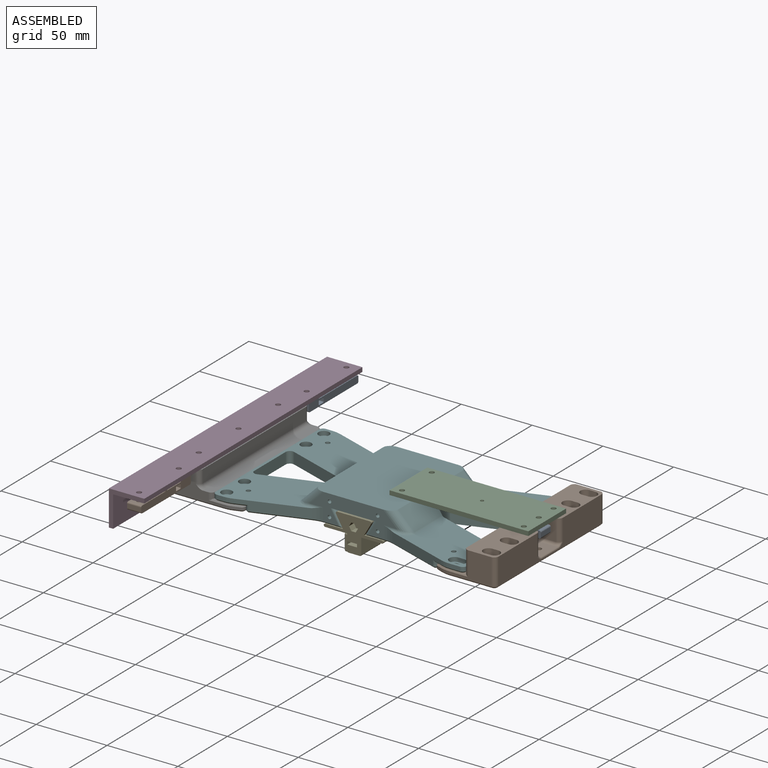
[diagram: assembled view]
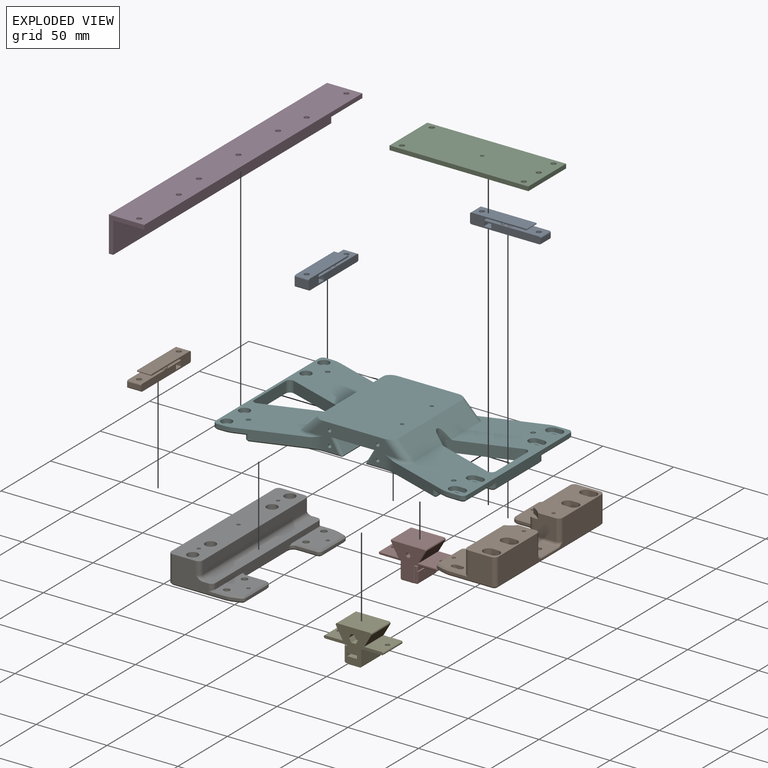
[diagram: exploded view]
GUIDED TOUR — MATED ASSEMBLY WITH SUBASSEMBLIES (Onshape document 8269ac0047d7daedeea948b6, AutoMate assembly 8269ac0047d7daedeea948b6_6d0890d1c90b11d7896fee83_16372f622378d9fdaa689036_default)

This assembly has 12 component occurrences arranged in 10 top-level units: 8 individual components plus 2 subassemblies (S0, S1). The tour has two levels: first the top level, where each subassembly is treated as one rigid unit; then each subassembly is toured internally in its own section (nesting deeper than one subassembly level is flattened into its subassembly's section).

Components are labeled P0..P11 across the whole record; subassembly units are labeled S0..S1. A mate is a constraint between two units; its type names the relative motion it leaves free:
  FASTENED — locks the two components together rigidly (no relative motion),
  PLANAR — leaves sliding in the plane through the listed point (normal = the listed direction) and rotation about that normal free.
Axis/direction vectors are unit vectors and 'through' points are millimeter coordinates, both in the assembly's world frame.

TOP-LEVEL MATES (between units; each subassembly's internal mates are listed in its own section)
  1. FASTENED "Fastened 6": P5 <-> P2, direction (0.000, 0.000, 1.000) through (-21.30, 15.14, 10.47) mm
  2. PLANAR "Planar 2": P5 <-> S0, direction (0.866, 0.000, 0.500) through (-50.83, 0.14, -3.60) mm
  3. FASTENED "Fastened 7": P1 <-> P5, direction (0.000, 0.000, 1.000) through (32.70, 40.14, -5.53) mm
  4. FASTENED "Fastened 1": P7 <-> P3, direction (0.000, 0.000, 1.000) through (-147.30, 40.14, 10.47) mm
  5. FASTENED "Fastened 3": P11 <-> P3, direction (0.000, 0.000, 1.000) through (-144.30, -64.36, 10.47) mm
  6. PLANAR "Planar 3": S1 <-> P5, direction (0.866, 0.000, -0.500) through (-29.86, 27.90, -5.28) mm
  7. PLANAR "Planar 1": S0 <-> P5, direction (0.000, 0.000, 1.000) through (-53.42, -27.68, -9.53) mm
  8. FASTENED "Fastened 4": P7 <-> P5, direction (0.000, 0.000, 1.000) through (-121.30, -48.86, -5.53) mm
  9. PLANAR "Planar 4": S1 <-> P5, direction (0.000, 0.000, 1.000) through (-26.18, 27.91, -9.53) mm
  10. FASTENED "Fastened 5": P2 <-> P10, direction (0.000, 0.000, -1.000) through (24.70, 0.14, 10.47) mm
  11. FASTENED "Fastened 2": P0 <-> P3, direction (0.000, 0.000, 1.000) through (-144.30, 64.64, 10.47) mm

TOP-LEVEL ASSEMBLY ORDER
  1. P1 — the base component [order verified]
  2. P5 [order verified]
  3. P7 [order verified]
  4. S1 [order verified]
  5. S0 [order verified]
  6. P11 [order verified]
  7. P0 [order verified]
  8. P3 [order verified]
  9. P10 [order verified]
  10. P2 [order verified]
(P5, P7 verified with a relaxed clearance tolerance: the source model stores slight part interference there.)
Order-tag legend:
  [order verified] — this step's position reverses a verified removal order: the component was checked to insert without passing through the ones already placed.

Of the 12 component occurrences, 3 carry the full construction recipe — the FeatureScript program that regenerates the part's solid from scratch; the rest are supplied as boundary geometry only. Each toured unit is shown spotlighted twice — assembled, then exploded with a leader line back to its socket (green = recipe-attached component, orange = geometry-only, blue = subassembly unit; the rest desaturated gray).
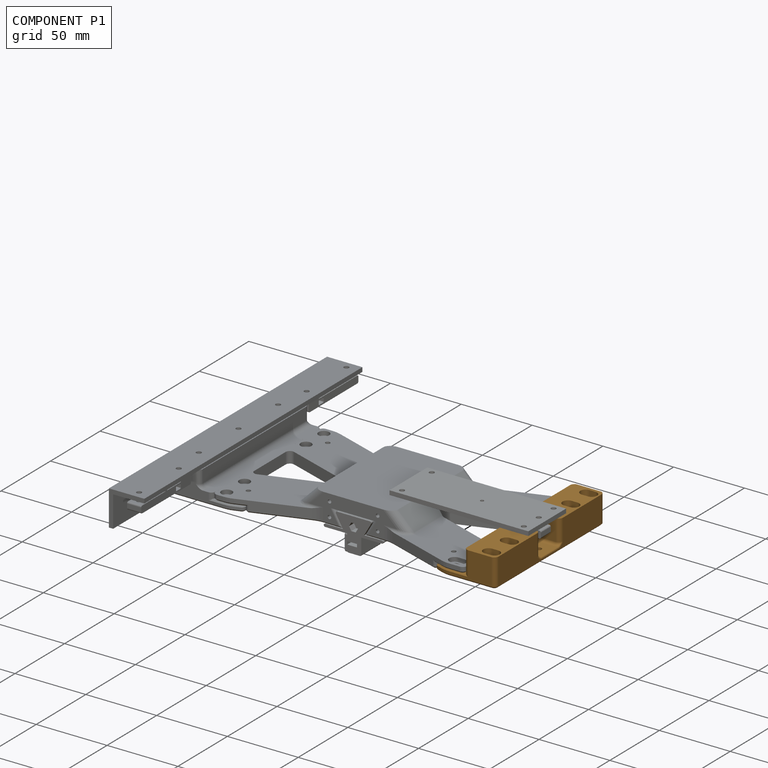
[diagram: component P1 — assembled]
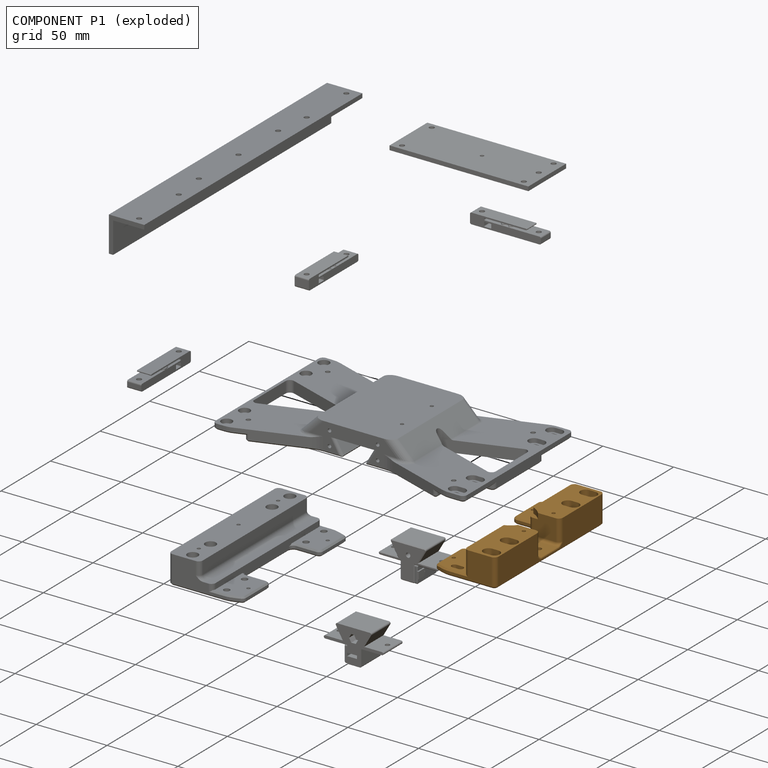
[diagram: component P1 — exploded]
COMPONENT P1 — geometry summary (no construction recipe available for this part):
  bounding box: 110.0 x 48.2 x 20.0 mm
  B-rep topology: 1 solid, 142 faces, 738 edges
  volume: 39856 mm^3 (38% of its bounding box)
  symmetry: mirror-symmetric across its y mid-plane
Held by: FASTENED mate "Fastened 7" to P5.
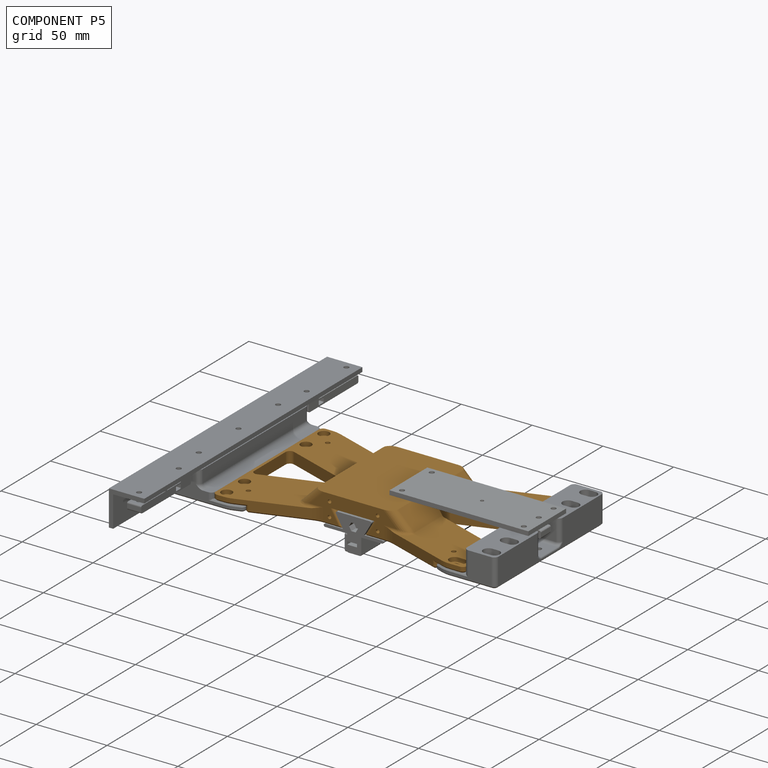
[diagram: component P5 — assembled]
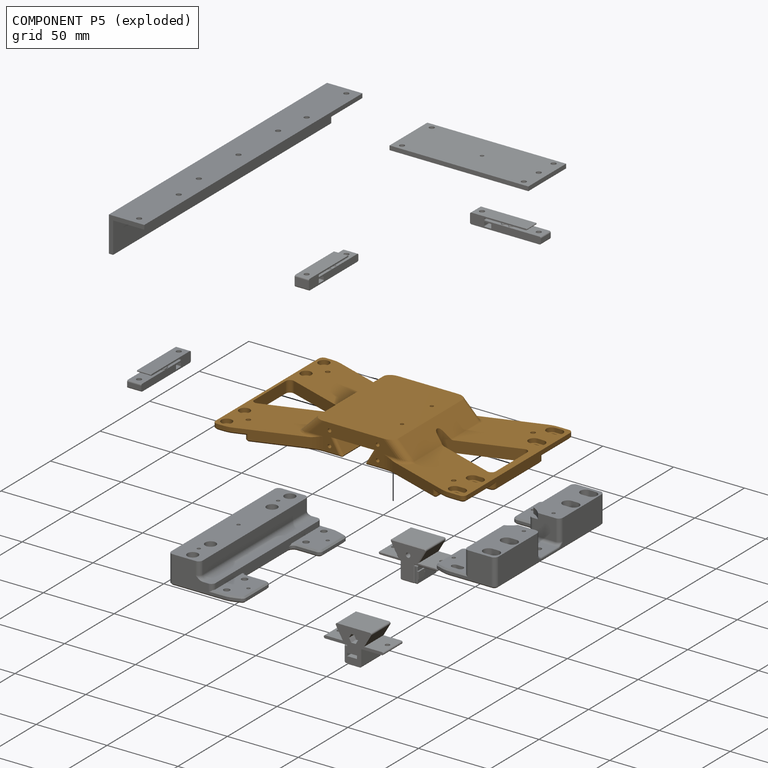
[diagram: component P5 — exploded]
COMPONENT P5 — geometry summary (no construction recipe available for this part):
  bounding box: 177.6 x 110.0 x 24.0 mm
  B-rep topology: 1 solid, 232 faces, 1196 edges
  volume: 138860 mm^3 (30% of its bounding box)
  symmetry: mirror-symmetric across its y mid-plane
Held by: FASTENED mate "Fastened 6" to P2; PLANAR mate "Planar 2" to P4; FASTENED mate "Fastened 7" to P1; PLANAR mate "Planar 3" to P8; PLANAR mate "Planar 1" to P4; FASTENED mate "Fastened 4" to P7; PLANAR mate "Planar 4" to P8.
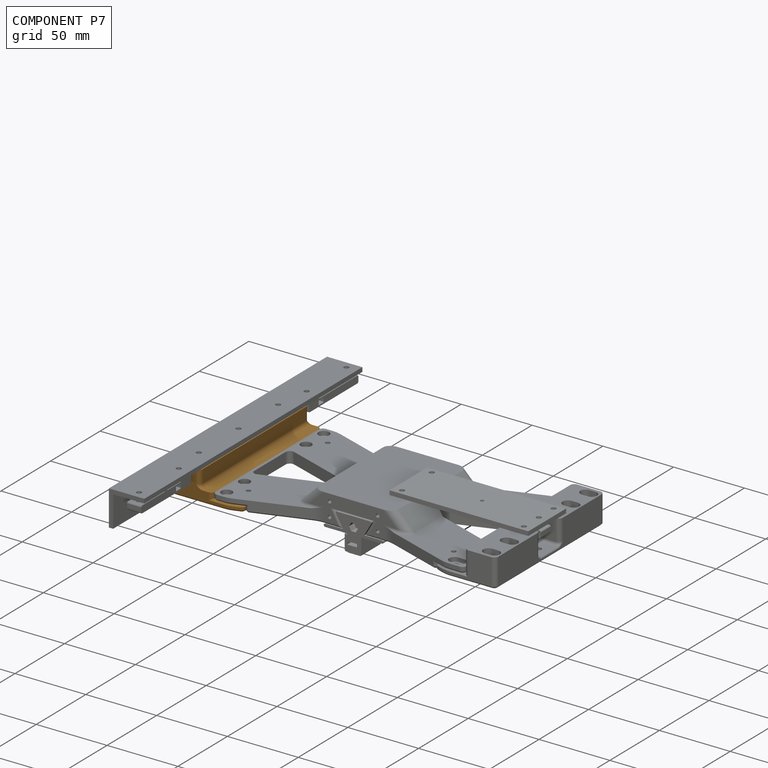
[diagram: component P7 — assembled]
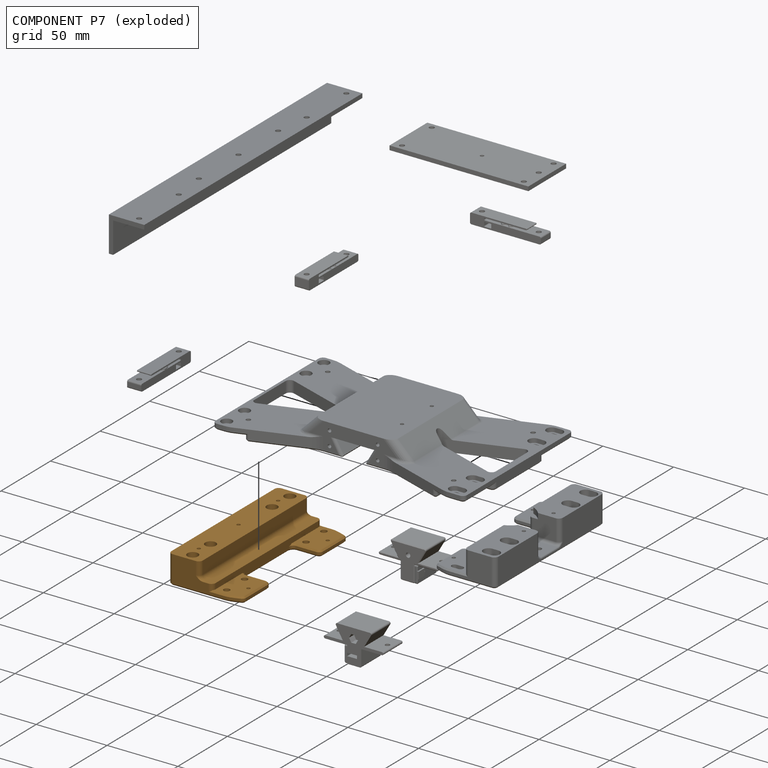
[diagram: component P7 — exploded]
COMPONENT P7 — geometry summary (no construction recipe available for this part):
  bounding box: 121.6 x 51.2 x 20.0 mm
  B-rep topology: 1 solid, 90 faces, 432 edges
  volume: 57745 mm^3 (46% of its bounding box)
  symmetry: mirror-symmetric across its y mid-plane
Held by: FASTENED mate "Fastened 1" to P3; FASTENED mate "Fastened 4" to P5.
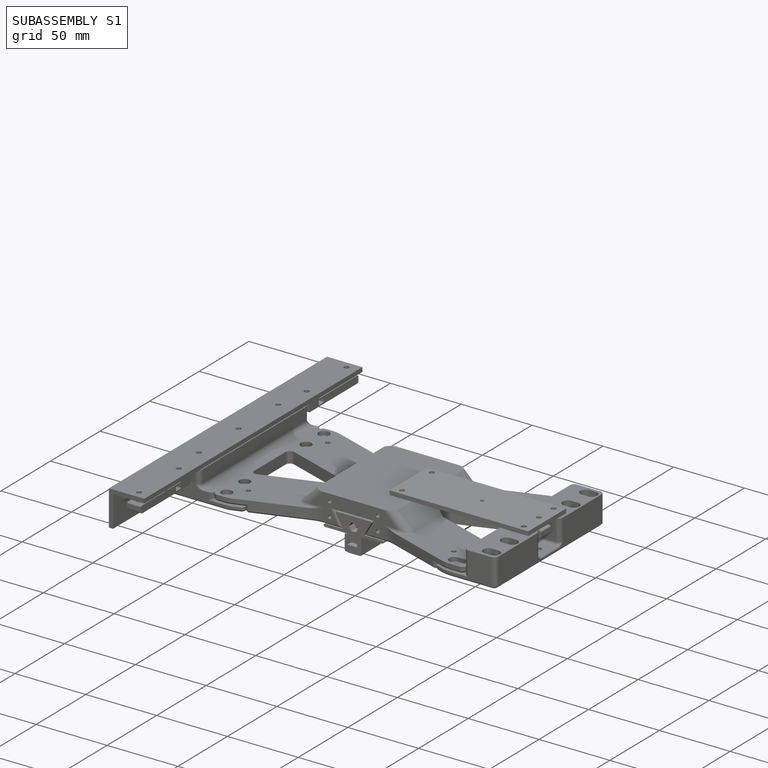
[diagram: subassembly S1 — assembled]
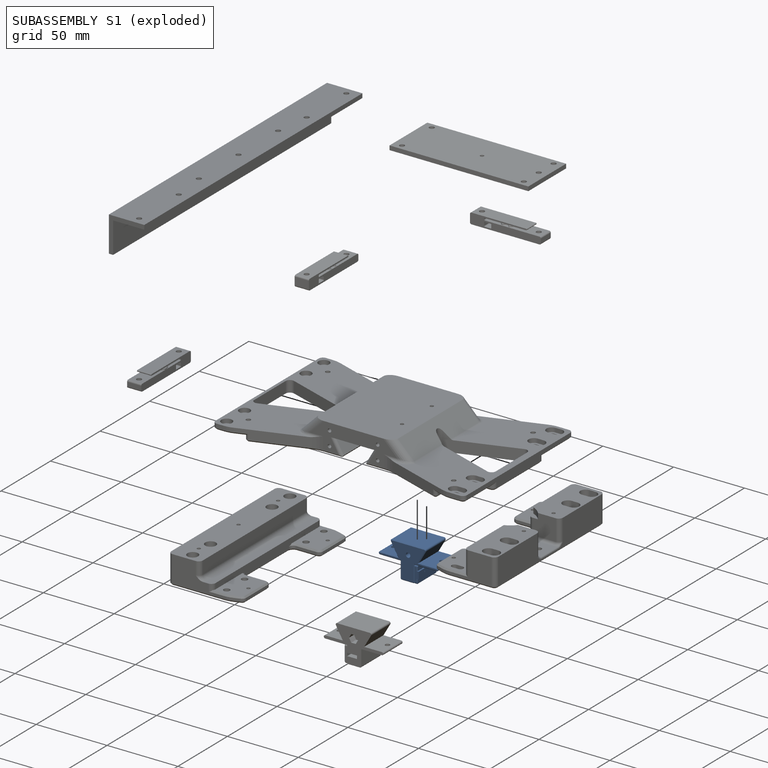
[diagram: subassembly S1 — exploded]
SUBASSEMBLY S1 — 2 components (P8, P9), of which 0 recipe-attached; toured below.
Held by: PLANAR mate "Planar 3" to P5; PLANAR mate "Planar 4" to P5.
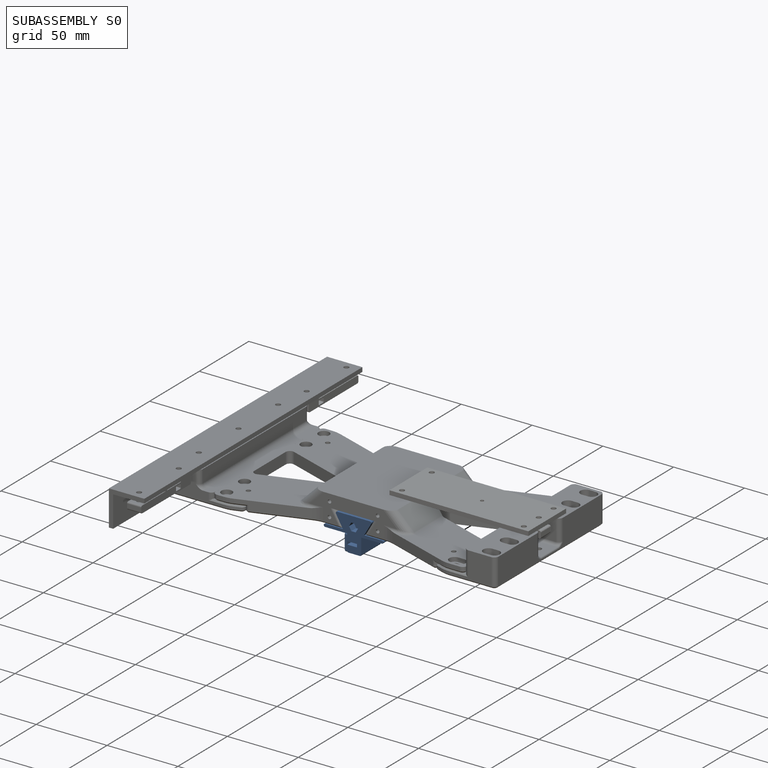
[diagram: subassembly S0 — assembled]
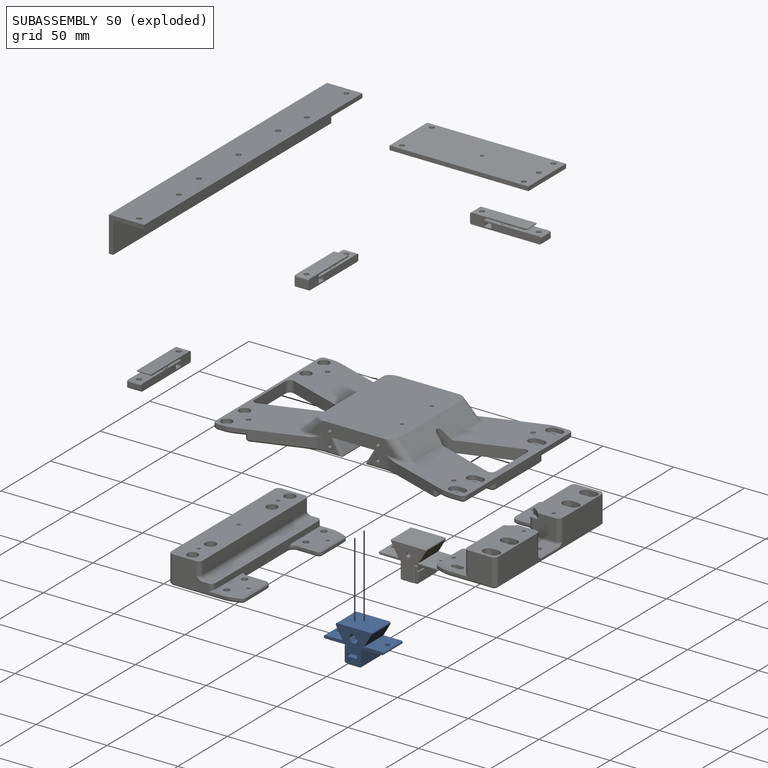
[diagram: subassembly S0 — exploded]
SUBASSEMBLY S0 — 2 components (P4, P6), of which 0 recipe-attached; toured below.
Held by: PLANAR mate "Planar 2" to P5; PLANAR mate "Planar 1" to P5.
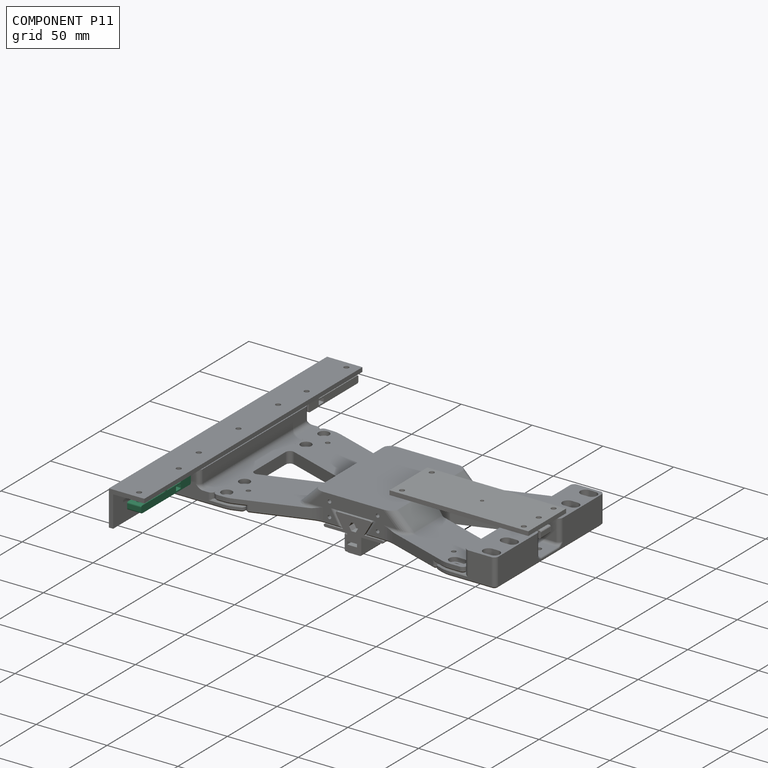
[diagram: component P11 — assembled]
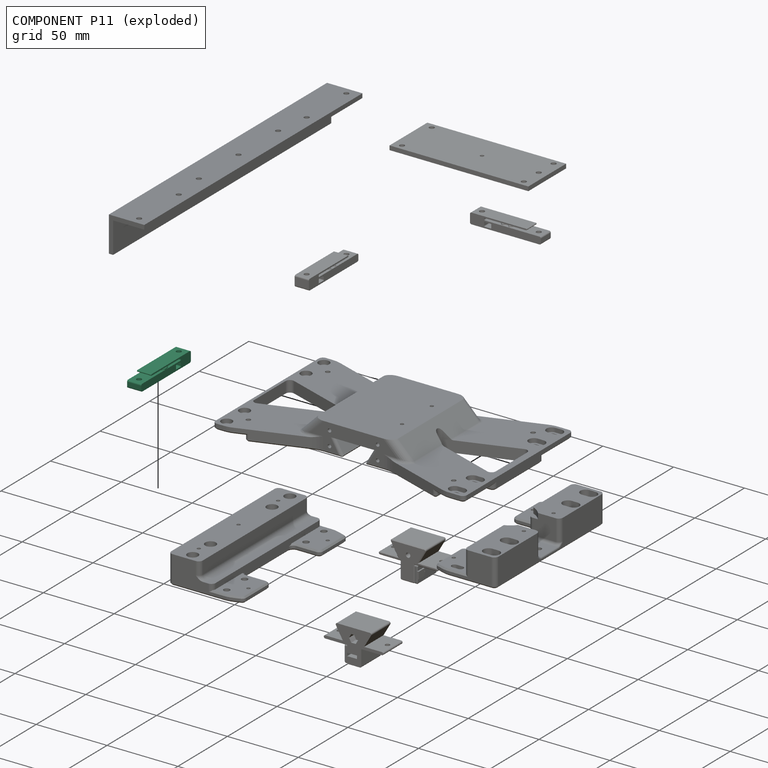
[diagram: component P11 — exploded]
COMPONENT P11 — same part as P0 (CADFS 00146708); its construction recipe is shown at P0.
Held by: FASTENED mate "Fastened 3" to P3.
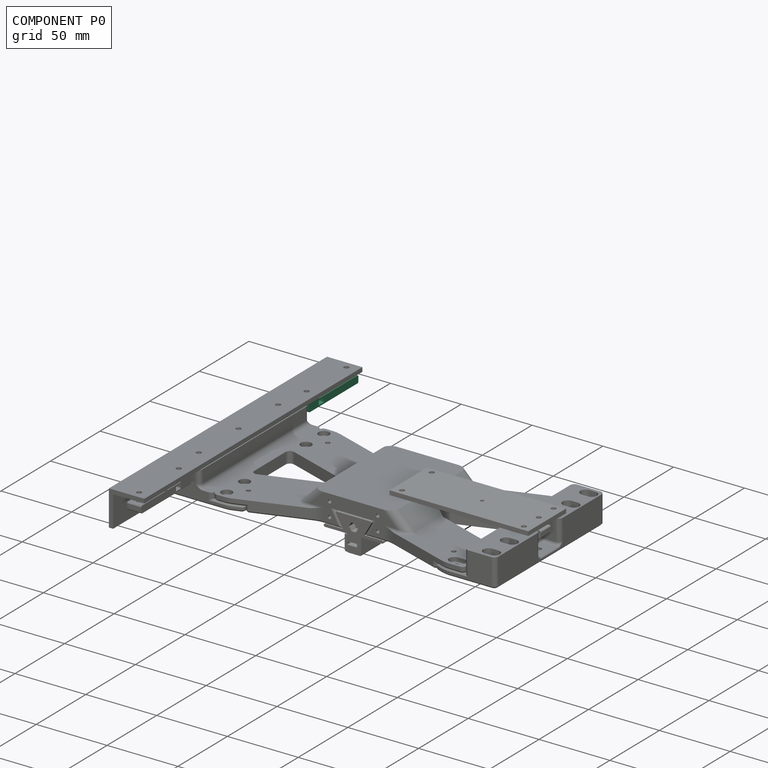
[diagram: component P0 — assembled]
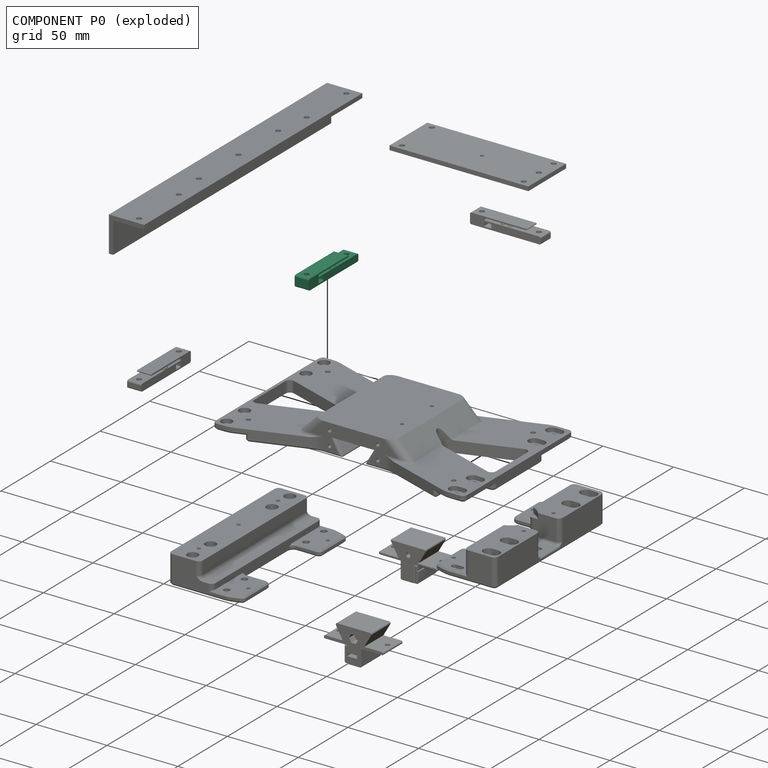
[diagram: component P0 — exploded]
COMPONENT P0 — recipe-attached (CADFS 00146708, mesh-verified: the recipe's output STEP matches this component's geometry to below the mesh-comparison resolution (tessellation chordal tolerance ~0.0773 mm)).
Held by: FASTENED mate "Fastened 2" to P3.
Construction recipe (FeatureScript — the CAD program that rebuilds this solid; sketch coordinates are in the units given by the * unit suffixes, e.g. mm):

FeatureScript 1511;
import(path : "onshape/std/geometry.fs", version : "1511.0");
import(path : "onshape/std/common.fs", version : "1511.0");
const mm = millimeter;
const VERTEX = EntityType.VERTEX;
const EDGE = EntityType.EDGE;
const FACE = EntityType.FACE;
const BODY = EntityType.BODY;
function v(x, y){return vector(x, y);}
function OD(order){return orderDisambiguation(order);}
function OSD(set){return originalSetDisambiguation(set);}
function TD(topology){return topologyDisambiguation(topology);}
function TDD(query){return trueDependencyDisambiguation(query);}
function sQuery(a, b, c) {return sketchEntityQuery(a, b, c);}

annotation { "Feature Type Name" : "Feature", "Feature Type Description" : "" }
export const myFeature = defineFeature(function(context is Context, id is Id, definition is map)
    precondition{}
    {
        {
            var Q0;
            Q0=qCreatedBy(makeId("Right.planeOp"),FACE);
            var sketch = newSketch(context, id + "F0", { "sketchPlane" : qUnion([Q0])});
            skLineSegment(sketch, "E0", {"start": v(0, 0) * mm, "end": v(40, 0) * mm});
            skLineSegment(sketch, "E1", {"start": v(40, 0) * mm, "end": v(40, -7.5) * mm});
            skLineSegment(sketch, "E2", {"start": v(40, -7.5) * mm, "end": v(-10, -7.5) * mm});
            skLineSegment(sketch, "E3", {"start": v(-10, -7.5) * mm, "end": v(-10, -2.5) * mm});
            skLineSegment(sketch, "E4", {"start": v(-10, -2.5) * mm, "end": v(30, -2.5) * mm});
            skLineSegment(sketch, "E5", {"start": v(30, -2.5) * mm, "end": v(30, -1) * mm});
            skLineSegment(sketch, "E6", {"start": v(30, -1) * mm, "end": v(0, -1) * mm});
            skLineSegment(sketch, "E7", {"start": v(0, -1) * mm, "end": v(0, 0) * mm});
            skLineSegment(sketch, "E8.bottom", {"start": v(25, -3.5) * mm, "end": v(30, -3.5) * mm});
            skLineSegment(sketch, "E8.top", {"start": v(25, -6.5) * mm, "end": v(30, -6.5) * mm});
            skLineSegment(sketch, "E8.left", {"start": v(25, -3.5) * mm, "end": v(25, -6.5) * mm});
            skLineSegment(sketch, "E8.right", {"start": v(30, -3.5) * mm, "end": v(30, -6.5) * mm});
            skSolve(sketch);
        }
        {
            var Q0;
            Q0=makeQuery(id+"F0.imprint","IMPRINT",FACE,{"disambiguationData":[TD([[makeQuery(id+"F0.imprint","IMPRINT",EDGE,{"derivedFrom":sQuery(id+"F0.wireOp",EDGE,"E0")}),-1.0]])]});
            extrude(context, id + "F1", {"entities" : qUnion([Q0]), "depth" : 10 * mm});
        }
        {
            var Q0;
            Q0=makeQuery(id+"F1.opExtrude","SWEPT_FACE",FACE,{"disambiguationData":[OSD([sQuery(id+"F0.wireOp",EDGE,"E2")])]});
            var sketch = newSketch(context, id + "F2", { "sketchPlane" : qUnion([Q0])});
            skCircle(sketch, "E9", {"center": v(5, -35) * mm, "radius": 1.75 * mm});
            skCircle(sketch, "E10", {"center": v(5, 5) * mm, "radius": 1.75 * mm});
            skLineSegment(sketch, "E11", {"start": v(5, 10) * mm, "end": v(5, -40) * mm, "construction": true});
            skSolve(sketch);
        }
        {
            var Q0;
            Q0 = qSketchRegion(id + "F2", true);
            extrude(context, id + "F3", {"entities" : qUnion([Q0]), "operationType" : NewBodyOperationType.REMOVE, "endBound" : BoundingType.THROUGH_ALL, "oppositeDirection" : true, "depth" : 25 * mm});
        }
        {
            var Q0;
            Q0=makeQuery(id+"F1.opExtrude","SWEPT_FACE",FACE,{"disambiguationData":[OSD([sQuery(id+"F0.wireOp",EDGE,"E4")])]});
            var sketch = newSketch(context, id + "F4", { "sketchPlane" : qUnion([Q0])});
            skArc(sketch, "E12", {"start": v(0, 13) * mm, "mid": v(10, 15) * mm, "end": v(0, 17) * mm});
            skArc(sketch, "E13", {"start": v(0, 13) * mm, "mid": v(2, 15) * mm, "end": v(0, 17) * mm});
            skSolve(sketch);
        }
        {
            var Q0;
            Q0 = qSketchRegion(id + "F4", true);
            extrude(context, id + "F5", {"entities" : qUnion([Q0]), "operationType" : NewBodyOperationType.ADD, "depth" : 1 * mm});
        }
        {
            var Q0;
            Q0=makeQuery(id+"F1.opExtrude","SWEPT_EDGE",EDGE,{"disambiguationData":[OSD([sQuery(id+"F0.wireOp",EDGE,"E5"),sQuery(id+"F0.wireOp",EDGE,"E6")])]});
            var Q1;
            Q1=makeQuery(id+"F1.opExtrude","SWEPT_EDGE",EDGE,{"disambiguationData":[OSD([sQuery(id+"F0.wireOp",EDGE,"E8.bottom"),sQuery(id+"F0.wireOp",EDGE,"E8.right")])]});
            var Q2;
            Q2=makeQuery(id+"F1.opExtrude","SWEPT_EDGE",EDGE,{"disambiguationData":[OSD([sQuery(id+"F0.wireOp",EDGE,"E4"),sQuery(id+"F0.wireOp",EDGE,"E5")])]});
            var Q3;
            Q3=makeQuery(id+"F1.opExtrude","SWEPT_EDGE",EDGE,{"disambiguationData":[OSD([sQuery(id+"F0.wireOp",EDGE,"E8.top"),sQuery(id+"F0.wireOp",EDGE,"E8.right")])]});
            var Q4;
            Q4=makeQuery(id+"F1.opExtrude","SWEPT_EDGE",EDGE,{"disambiguationData":[OSD([sQuery(id+"F0.wireOp",EDGE,"E8.bottom"),sQuery(id+"F0.wireOp",EDGE,"E8.left")])]});
            var Q5;
            Q5=makeQuery(id+"F1.opExtrude","SWEPT_EDGE",EDGE,{"disambiguationData":[OSD([sQuery(id+"F0.wireOp",EDGE,"E8.top"),sQuery(id+"F0.wireOp",EDGE,"E8.left")])]});
            var Q6;
            Q6=makeQuery(id+"F1.opExtrude","SWEPT_EDGE",EDGE,{"disambiguationData":[OSD([sQuery(id+"F0.wireOp",EDGE,"E0"),sQuery(id+"F0.wireOp",EDGE,"E7")])]});
            var Q7;
            Q7=makeQuery(id+"F1.opExtrude","SWEPT_EDGE",EDGE,{"disambiguationData":[OSD([sQuery(id+"F0.wireOp",EDGE,"E6"),sQuery(id+"F0.wireOp",EDGE,"E7")])]});
            fillet(context, id + "F6", {"entities" : qUnion([Q0, Q1, Q2, Q3, Q4, Q5, Q6, Q7]), "radius" : .5 * mm, "tangentPropagation" : true, "allowEdgeOverflow" : false});
        }
        {
            var Q0;
            Q0=makeQuery(id+"F1.opExtrude","SWEPT_EDGE",EDGE,{"disambiguationData":[OSD([sQuery(id+"F0.wireOp",EDGE,"E1"),sQuery(id+"F0.wireOp",EDGE,"E2")])]});
            var Q1;
            Q1=makeQuery(id+"F1.opExtrude","SWEPT_EDGE",EDGE,{"disambiguationData":[OSD([sQuery(id+"F0.wireOp",EDGE,"E0"),sQuery(id+"F0.wireOp",EDGE,"E1")])]});
            var Q2;
            Q2=makeQuery(id+"F1.opExtrude","SWEPT_EDGE",EDGE,{"disambiguationData":[OSD([sQuery(id+"F0.wireOp",EDGE,"E2"),sQuery(id+"F0.wireOp",EDGE,"E3")])]});
            var Q3;
            Q3=makeQuery(id+"F1.opExtrude","SWEPT_EDGE",EDGE,{"disambiguationData":[OSD([sQuery(id+"F0.wireOp",EDGE,"E3"),sQuery(id+"F0.wireOp",EDGE,"E4")])]});
            fillet(context, id + "F7", {"entities" : qUnion([Q0, Q1, Q2, Q3]), "radius" : 1 * mm, "tangentPropagation" : true, "allowEdgeOverflow" : false});
        }
        {
            var Q0;
            {var subQ0=sQuery(id+"F4.wireOp",EDGE,"E13");var subQ1=sQuery(id+"F4.wireOp",EDGE,"E12");var subQ2=sQuery(id+"F0.wireOp",EDGE,"E4");Q0=makeQuery(id+"F5.opExtrude","SWEPT_EDGE",EDGE,{"disambiguationData":[OSD([subQ2,subQ1,subQ0]),TDD([makeQuery(id+"F4.imprint","INTERSECT",VERTEX,{"disambiguationData":[OD(1.0)],"derivedFrom":[makeQuery(id+"F1.opExtrude","CAP_EDGE",EDGE,{"disambiguationData":[OSD([subQ2])],"isStart":true}),subQ1,subQ0]})])]});}
            var Q1;
            {var subQ0=sQuery(id+"F4.wireOp",EDGE,"E13");var subQ1=sQuery(id+"F4.wireOp",EDGE,"E12");var subQ2=sQuery(id+"F0.wireOp",EDGE,"E4");Q1=makeQuery(id+"F5.opExtrude","SWEPT_EDGE",EDGE,{"disambiguationData":[OSD([subQ2,subQ1,subQ0]),TDD([makeQuery(id+"F4.imprint","INTERSECT",VERTEX,{"disambiguationData":[OD(0.0)],"derivedFrom":[makeQuery(id+"F1.opExtrude","CAP_EDGE",EDGE,{"disambiguationData":[OSD([subQ2])],"isStart":true}),subQ1,subQ0]})])]});}
            fillet(context, id + "F8", {"entities" : qUnion([Q0, Q1]), "radius" : .5 * mm, "tangentPropagation" : true, "allowEdgeOverflow" : false});
        }
        {
            var Q0;
            {var subQ0=sQuery(id+"F4.wireOp",EDGE,"E13");var subQ1=sQuery(id+"F4.wireOp",EDGE,"E12");var subQ2=sQuery(id+"F0.wireOp",EDGE,"E4");Q0=makeQuery(id+"F8.opFillet","BLEND_EDGE",EDGE,{"blendedFrom":[makeQuery(id+"F5.opExtrude","SWEPT_EDGE",EDGE,{"disambiguationData":[OSD([subQ2,subQ1,subQ0]),TDD([makeQuery(id+"F4.imprint","INTERSECT",VERTEX,{"disambiguationData":[OD(1.0)],"derivedFrom":[makeQuery(id+"F1.opExtrude","CAP_EDGE",EDGE,{"disambiguationData":[OSD([subQ2])],"isStart":true}),subQ1,subQ0]})])]}),makeQuery(id+"F5.opExtrude","CAP_FACE",FACE,{"disambiguationData":[OSD([subQ1,subQ0])],"isStart":false})],"blendedInto":[makeQuery(id+"F5.opExtrude","CAP_FACE",FACE,{"disambiguationData":[OSD([subQ1,subQ0])],"isStart":false})]});}
            fillet(context, id + "F9", {"entities" : qUnion([Q0]), "radius" : .4 * mm, "tangentPropagation" : true, "allowEdgeOverflow" : false});
        }
        {
            var Q0;
            Q0=makeQuery(id+"F5.boolean.opBoolean","SPLIT",EDGE,{"disambiguationData":[OD(0.0)],"derivedFrom":makeQuery(id+"F5.opExtrude","CAP_EDGE",EDGE,{"disambiguationData":[OSD([sQuery(id+"F4.wireOp",EDGE,"E12")])],"isStart":true})});
            fillet(context, id + "F10", {"entities" : qUnion([Q0]), "radius" : .5 * mm, "tangentPropagation" : true, "allowEdgeOverflow" : false});
        }
    });
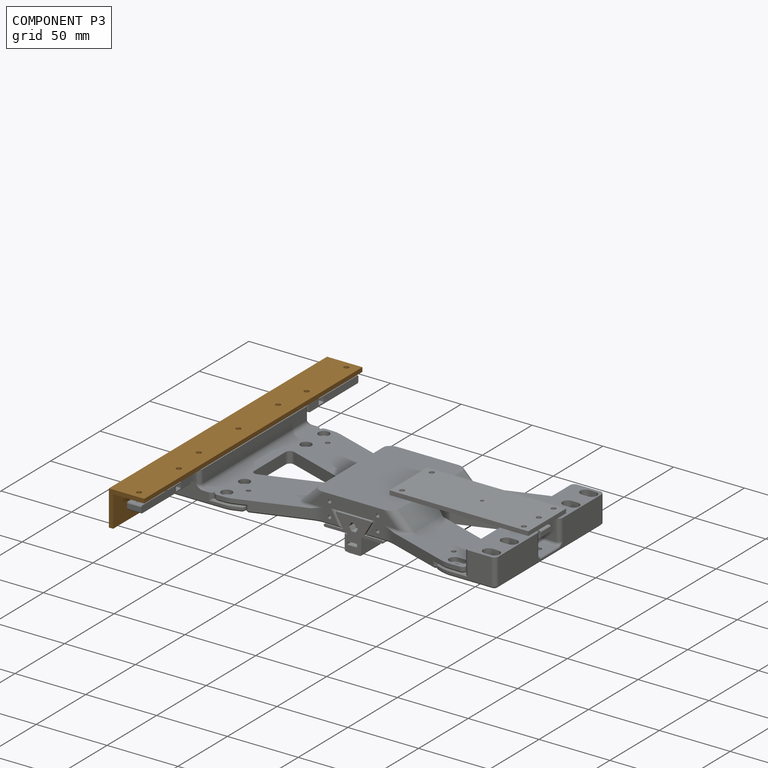
[diagram: component P3 — assembled]
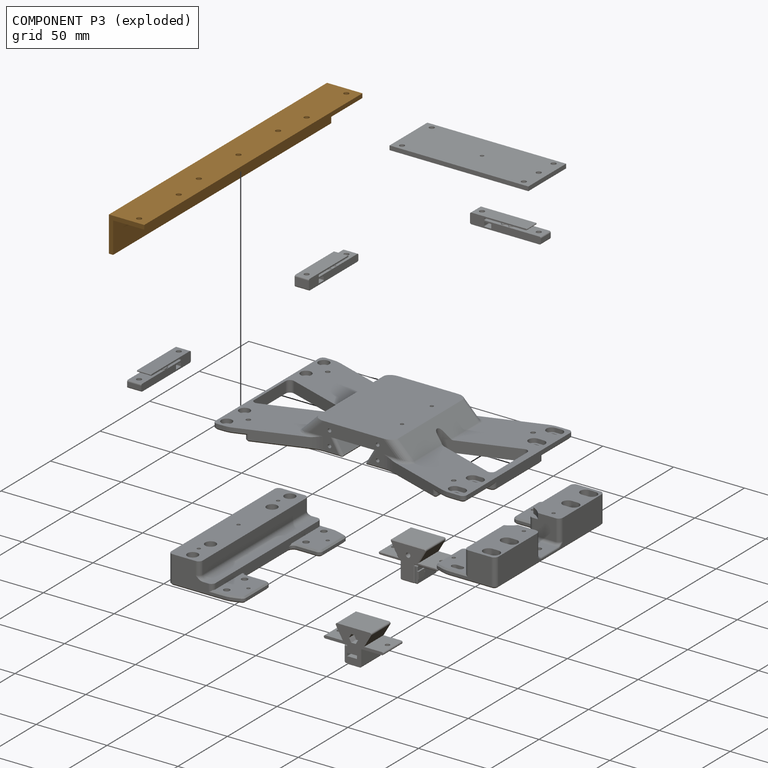
[diagram: component P3 — exploded]
COMPONENT P3 — geometry summary (no construction recipe available for this part):
  bounding box: 220.0 x 25.0 x 25.0 mm
  B-rep topology: 1 solid, 15 faces, 78 edges
  volume: 30818 mm^3 (22% of its bounding box)
  symmetry: mirror-symmetric across its y mid-plane
Held by: FASTENED mate "Fastened 1" to P7; FASTENED mate "Fastened 3" to P11; FASTENED mate "Fastened 2" to P0.
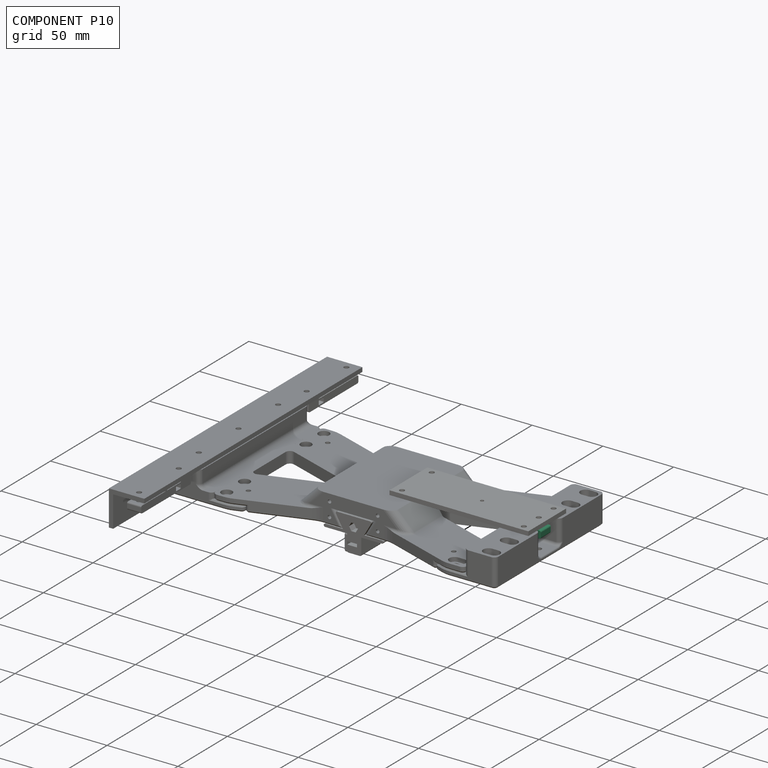
[diagram: component P10 — assembled]
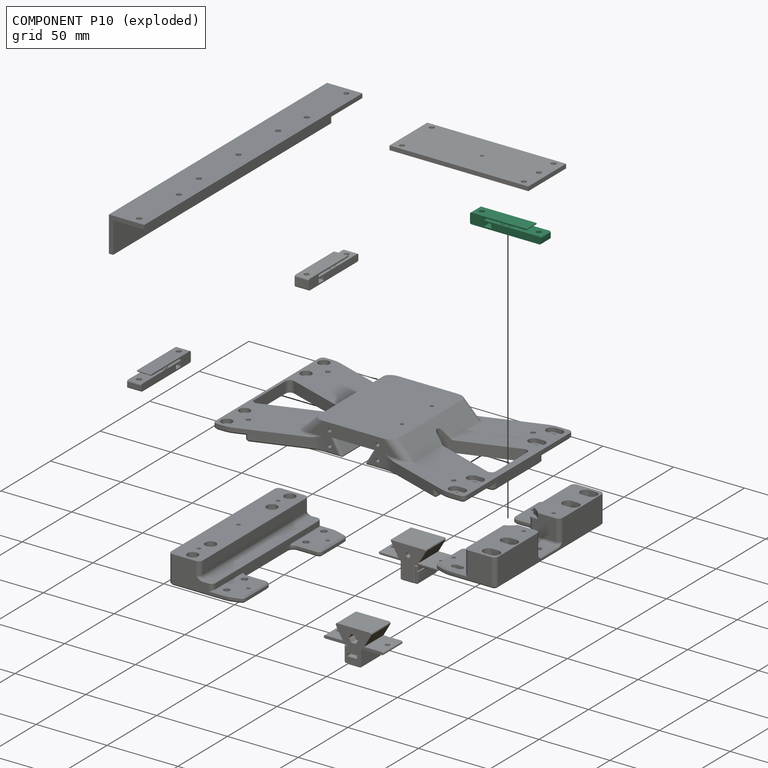
[diagram: component P10 — exploded]
COMPONENT P10 — same part as P0 (CADFS 00146708); its construction recipe is shown at P0.
Held by: FASTENED mate "Fastened 5" to P2.
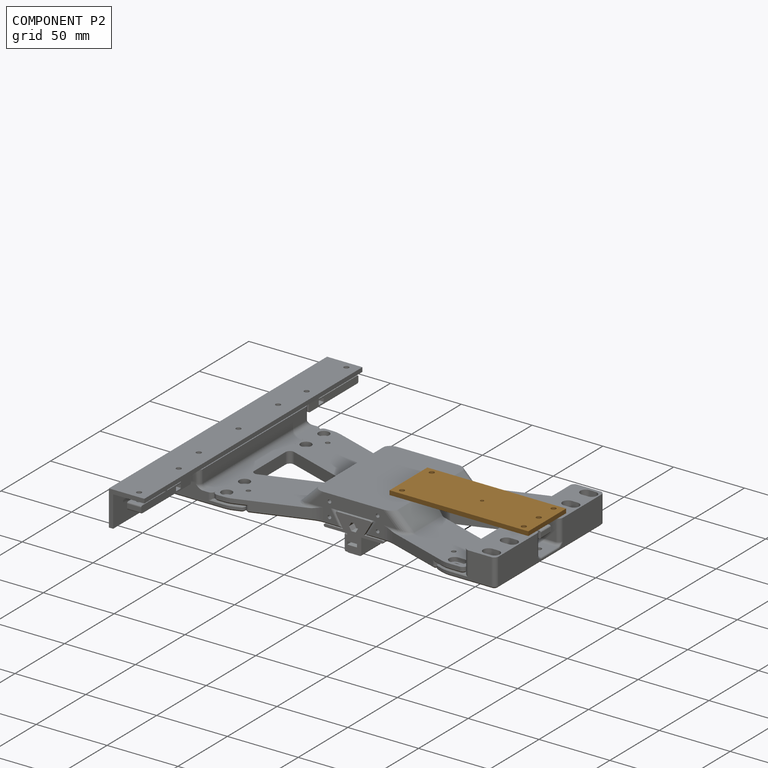
[diagram: component P2 — assembled]
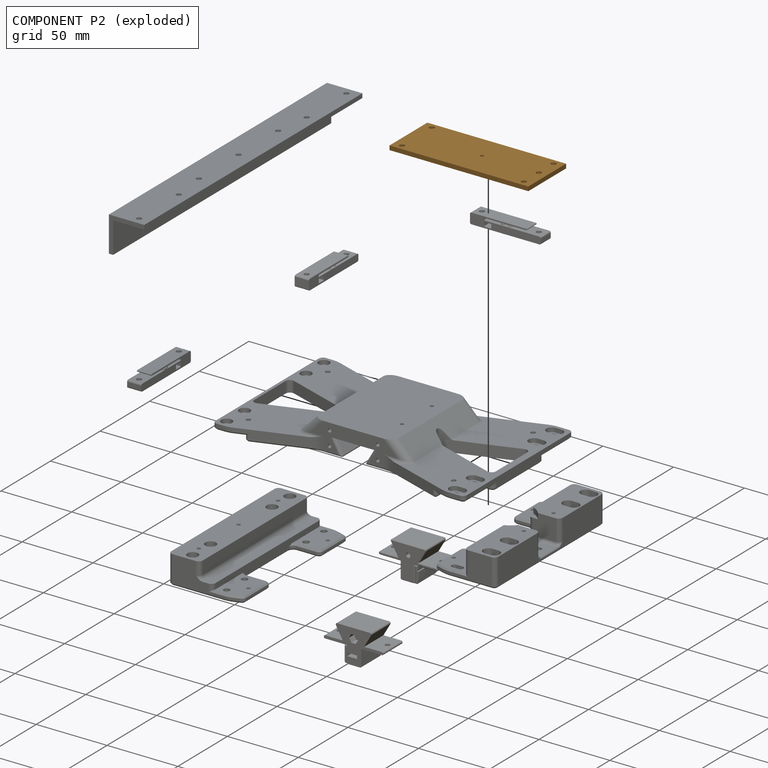
[diagram: component P2 — exploded]
COMPONENT P2 — geometry summary (no construction recipe available for this part):
  bounding box: 98.0 x 38.1 x 3.0 mm
  B-rep topology: 1 solid, 12 faces, 60 edges
  volume: 11042 mm^3 (99% of its bounding box)
  symmetry: 2-fold rotationally symmetric about the y axis; mirror-symmetric across its x mid-plane, z mid-plane
Held by: FASTENED mate "Fastened 6" to P5; FASTENED mate "Fastened 5" to P10.
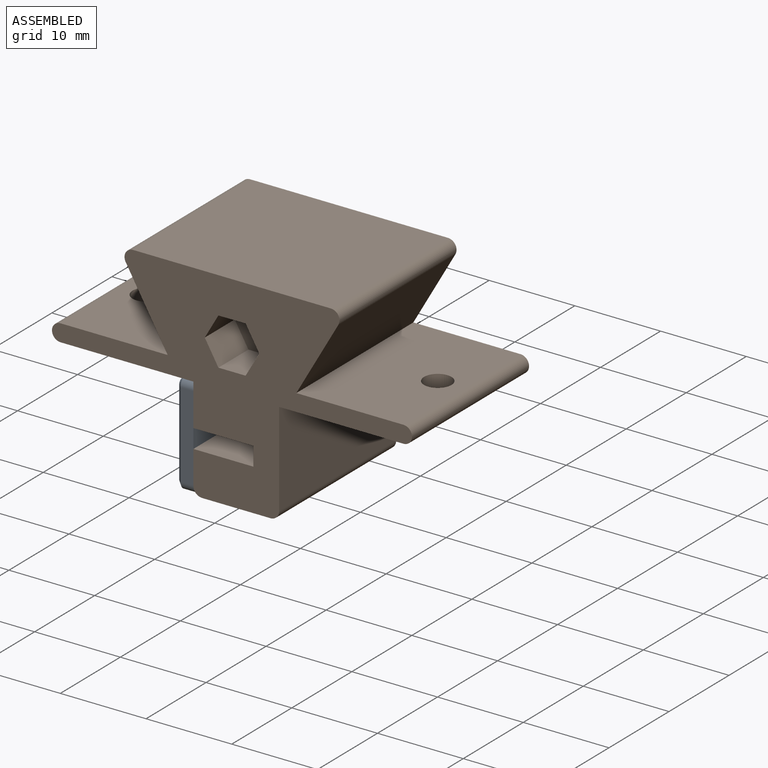
[diagram: subassembly S0 — assembled view]
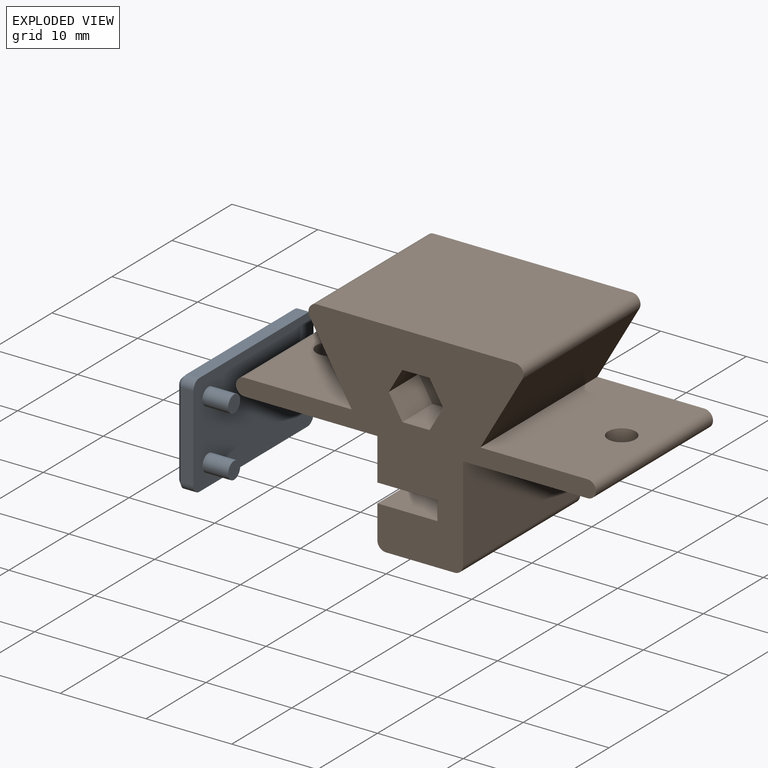
[diagram: subassembly S0 — exploded view]
SUBASSEMBLY S0 TOUR — 2 components, shown here in isolation at its own camera.

INTERNAL MATES
  1. FASTENED "Fastened 8": P6 <-> P4, direction (-1.000, 0.000, 0.000) through (-44.28, -23.42, -17.53) mm
  2. FASTENED "Fastened 8": P6 <-> P4, direction (-1.000, 0.000, 0.000) through (-44.28, -23.42, -17.53) mm

ASSEMBLY ORDER (within the subassembly)
  1. P4 — the base component [order heuristic]
  2. P6 [order heuristic]
Order-tag legend:
  [order heuristic] — this assembly is geometrically interlocked (no collision-free removal order exists), so components are listed in mate-graph order; insertion feasibility is not verified.
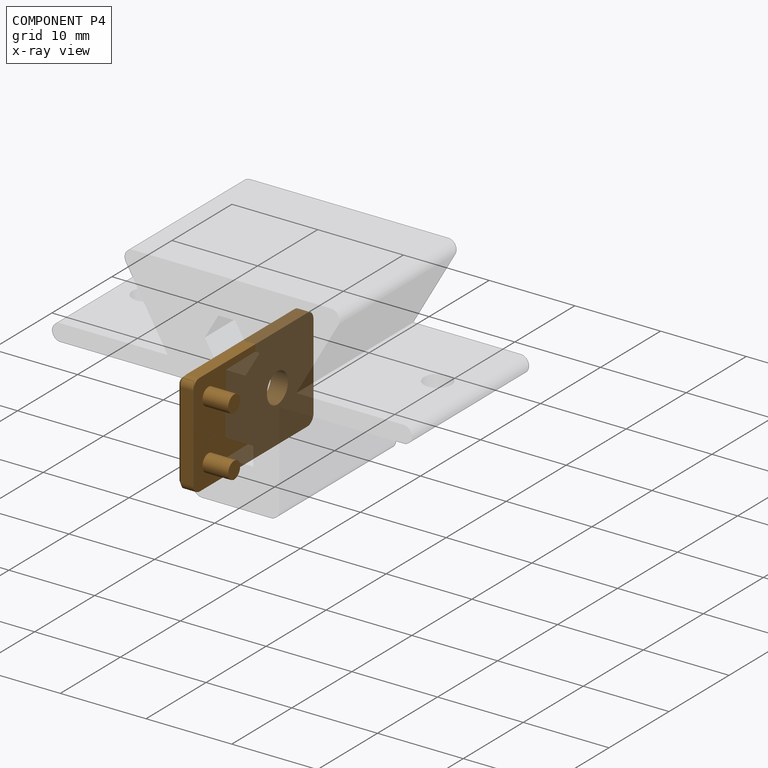
[diagram: component P4 — x-ray view]
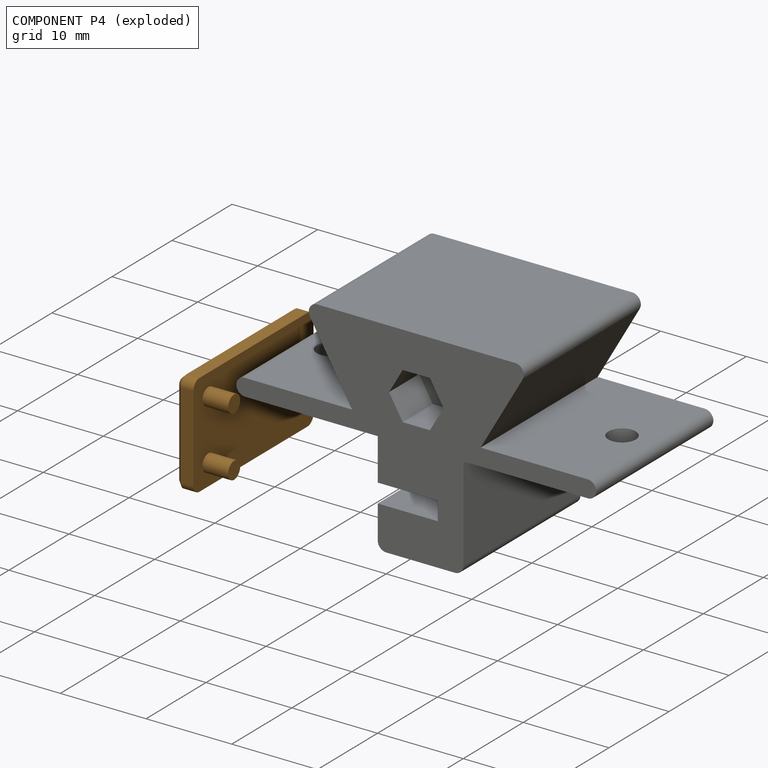
[diagram: component P4 — exploded]
COMPONENT P4 — geometry summary (no construction recipe available for this part):
  bounding box: 20.0 x 12.0 x 5.0 mm
  B-rep topology: 1 solid, 23 faces, 98 edges
  volume: 470 mm^3 (39% of its bounding box)
  symmetry: mirror-symmetric across its z mid-plane
Held by: FASTENED mate "Fastened 8" to P6; FASTENED mate "Fastened 8" to P6.
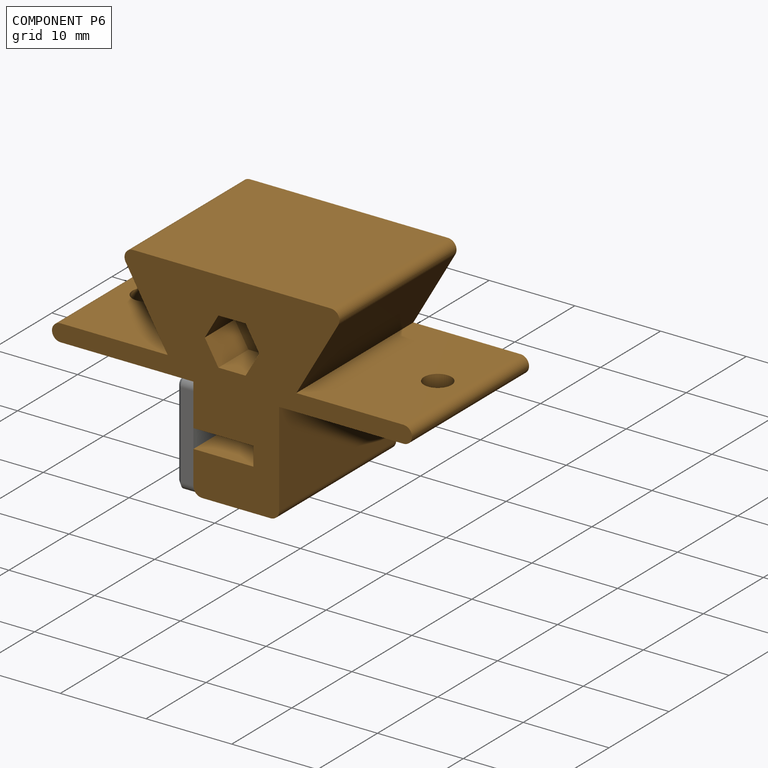
[diagram: component P6 — assembled]
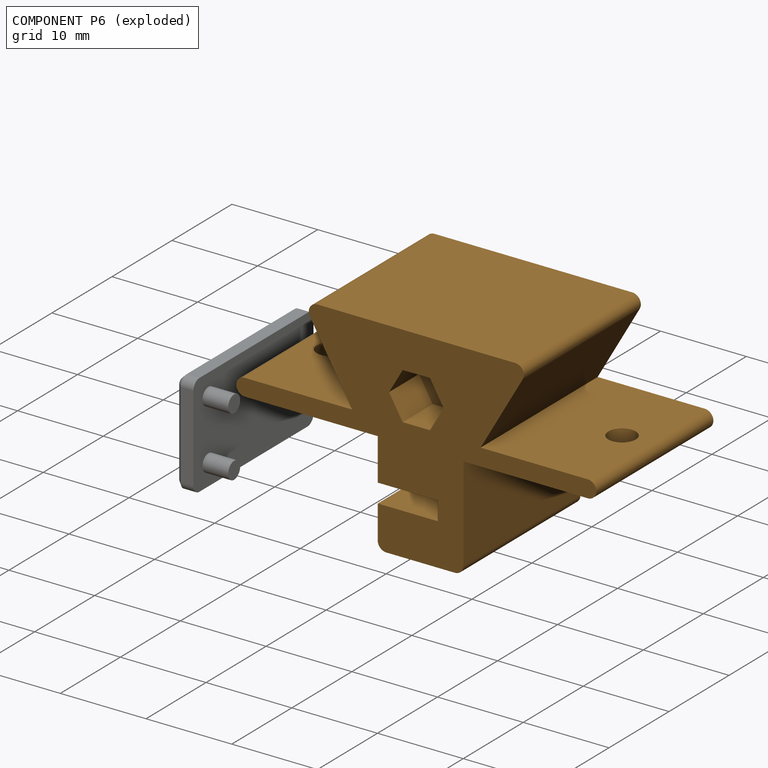
[diagram: component P6 — exploded]
COMPONENT P6 — geometry summary (no construction recipe available for this part):
  bounding box: 42.0 x 24.0 x 20.0 mm
  B-rep topology: 1 solid, 63 faces, 314 edges
  volume: 7468 mm^3 (37% of its bounding box)
Held by: FASTENED mate "Fastened 8" to P4; FASTENED mate "Fastened 8" to P4.
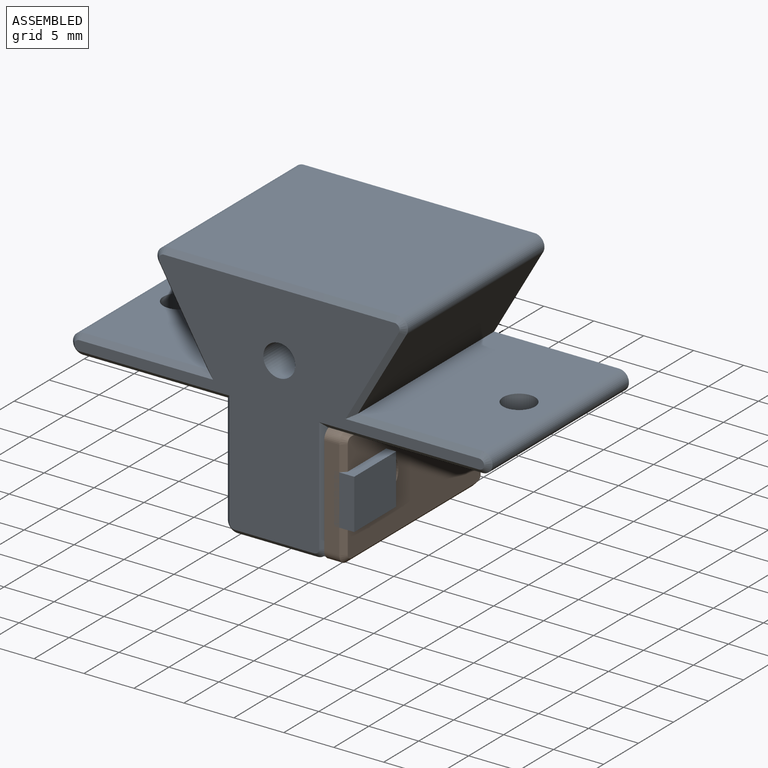
[diagram: subassembly S1 — assembled view]
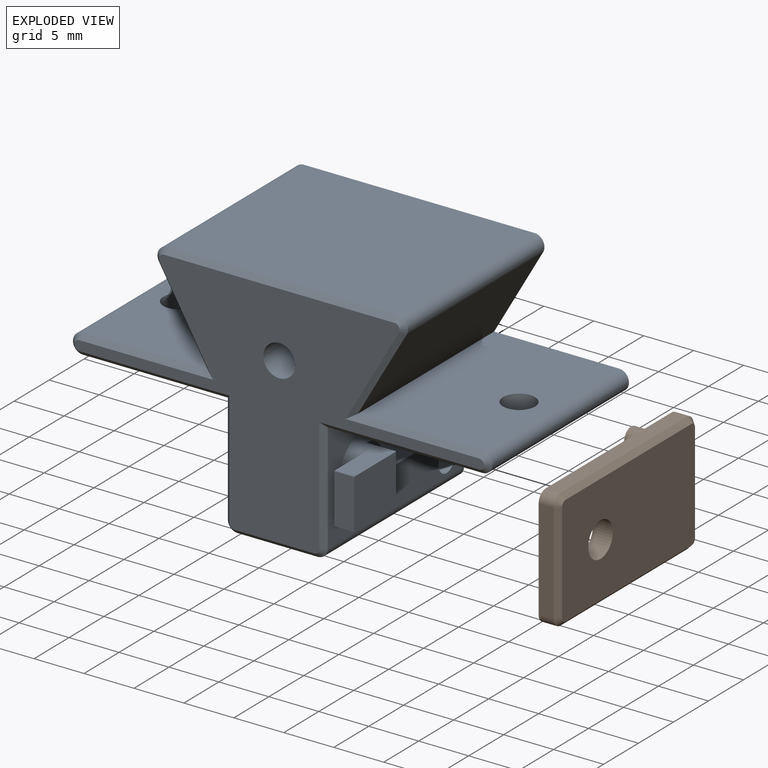
[diagram: subassembly S1 — exploded view]
SUBASSEMBLY S1 TOUR — 2 components, shown here in isolation at its own camera.

INTERNAL MATES
  1. FASTENED "Fastened 8": P8 <-> P9, direction (1.000, 0.000, 0.000) through (-35.32, 23.65, -17.53) mm
  2. FASTENED "Fastened 8": P8 <-> P9, direction (1.000, 0.000, 0.000) through (-35.32, 23.65, -17.53) mm

ASSEMBLY ORDER (within the subassembly)
  1. P8 — the base component [order heuristic]
  2. P9 [order heuristic]
Order-tag legend:
  [order heuristic] — this assembly is geometrically interlocked (no collision-free removal order exists), so components are listed in mate-graph order; insertion feasibility is not verified.
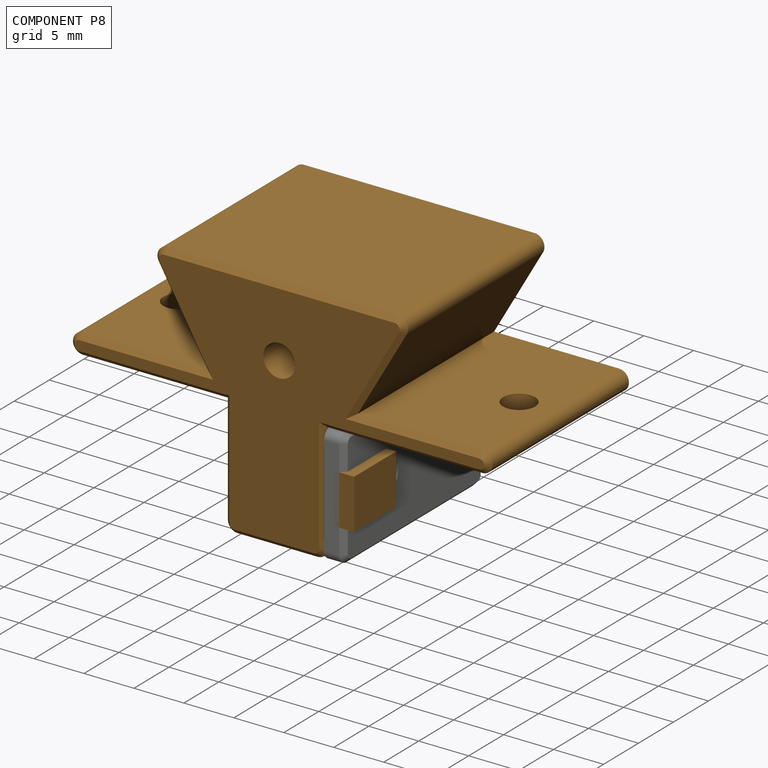
[diagram: component P8 — assembled]
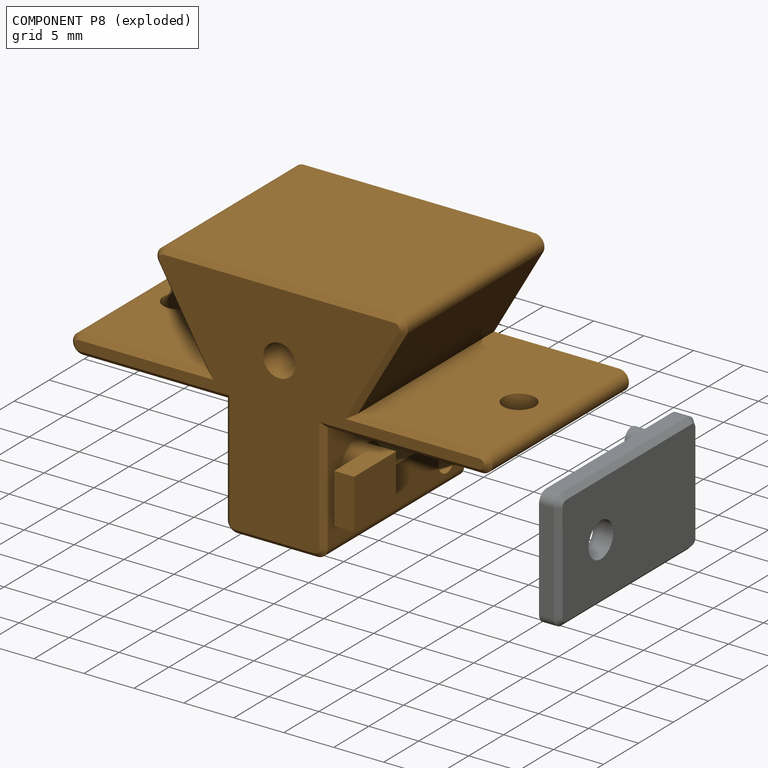
[diagram: component P8 — exploded]
COMPONENT P8 — geometry summary (no construction recipe available for this part):
  bounding box: 42.0 x 24.0 x 20.0 mm
  B-rep topology: 1 solid, 63 faces, 314 edges
  volume: 7468 mm^3 (37% of its bounding box)
Held by: FASTENED mate "Fastened 8" to P9; FASTENED mate "Fastened 8" to P9.
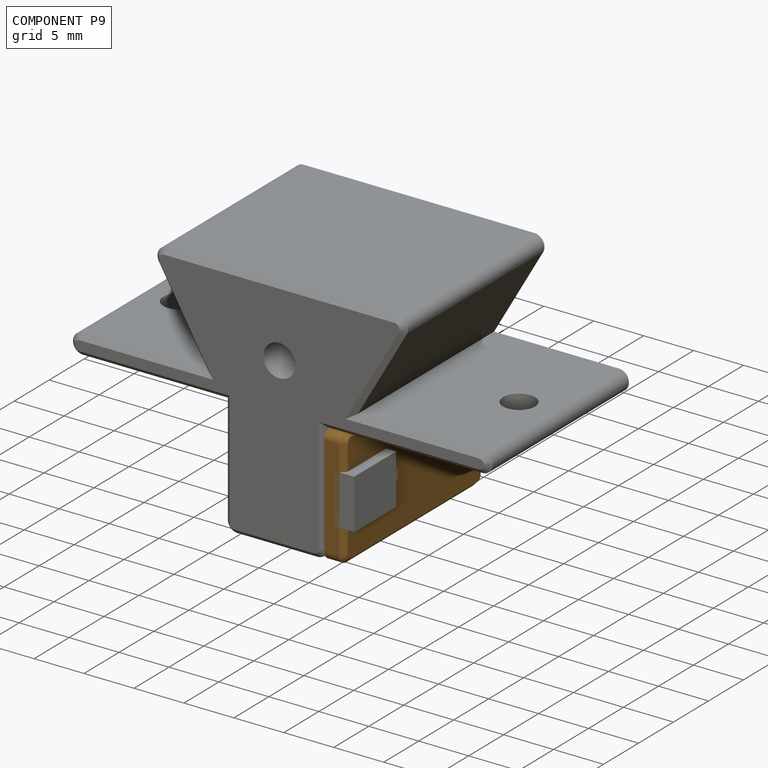
[diagram: component P9 — assembled]
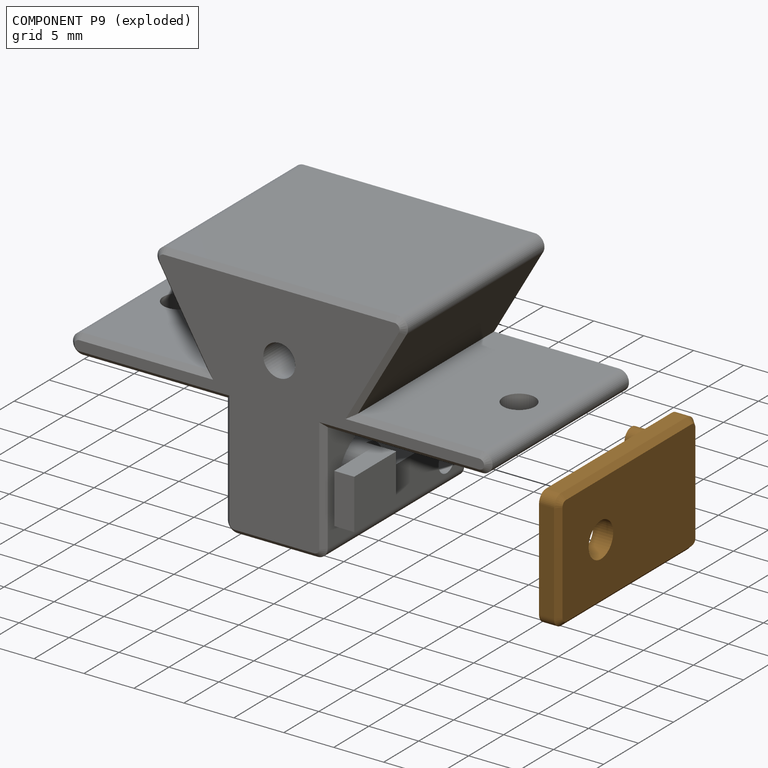
[diagram: component P9 — exploded]
COMPONENT P9 — geometry summary (no construction recipe available for this part):
  bounding box: 20.0 x 12.0 x 5.0 mm
  B-rep topology: 1 solid, 23 faces, 98 edges
  volume: 470 mm^3 (39% of its bounding box)
  symmetry: mirror-symmetric across its z mid-plane
Held by: FASTENED mate "Fastened 8" to P8; FASTENED mate "Fastened 8" to P8.
PROVENANCE & LICENSES
Assembly (occurrences, transforms, mates, per-part STEP geometry): AutoMate dataset, Zenodo record 7776208, CC0.
Construction recipes: CADFS (HuggingFace VladPyatov/CADFS, CC-BY-4.0, layered over the ABC dataset), FeatureScript reconstruction programs keyed by ABC model id.
Join: ABC meta listings map ABC model id -> Onshape documentId; within a shared document, parts are matched by geometric signature (bounding-box dims + volume at 0.1% relative tolerance, exact B-rep face/solid counts).
Verification: 3 of this assembly's 12 components carry a recipe attachment, and every attachment is mesh-verified: the CADFS STEP and the AutoMate member STEP were compared as meshes in their shared local frame (symmetric sampled-point-to-mesh distance); worst across the 3 attachments: below the mesh-comparison resolution (tessellation chordal tolerance ~0.0773 mm) on a 52 mm part.
Renders: orthographic iso camera (az 35 / el 25); the floor grid conveys scale (grid pitch printed in each image; no ruler). In the exploded view each component is displaced by its stored offset vector: the offsets alone carry the explosion direction (mate normal/axis signs are not orientation cues and do not encode it), and separation distances are assigned per mate-chain, not proportionally to assembly-order depth.
